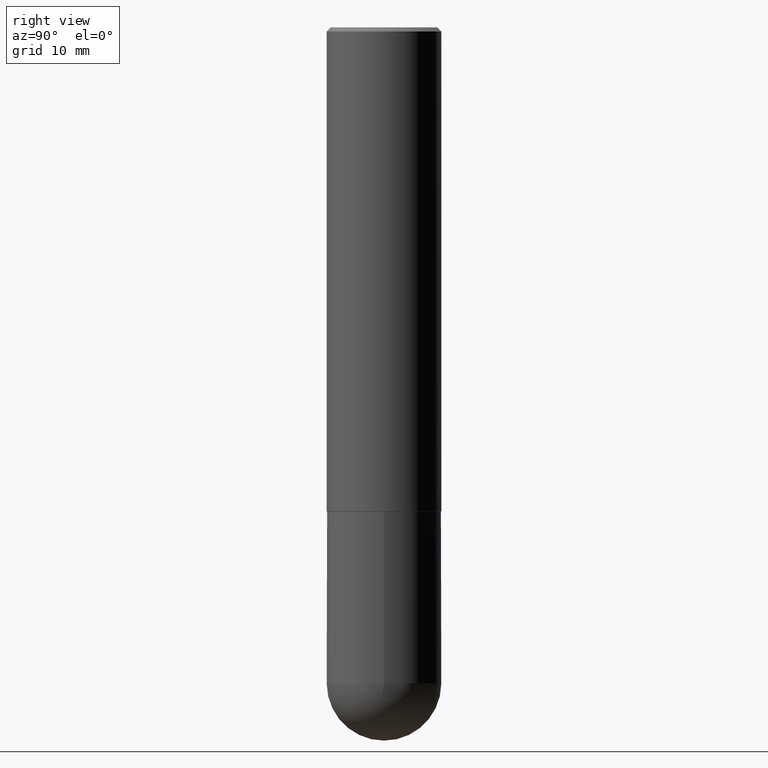
[diagram: clean part render]
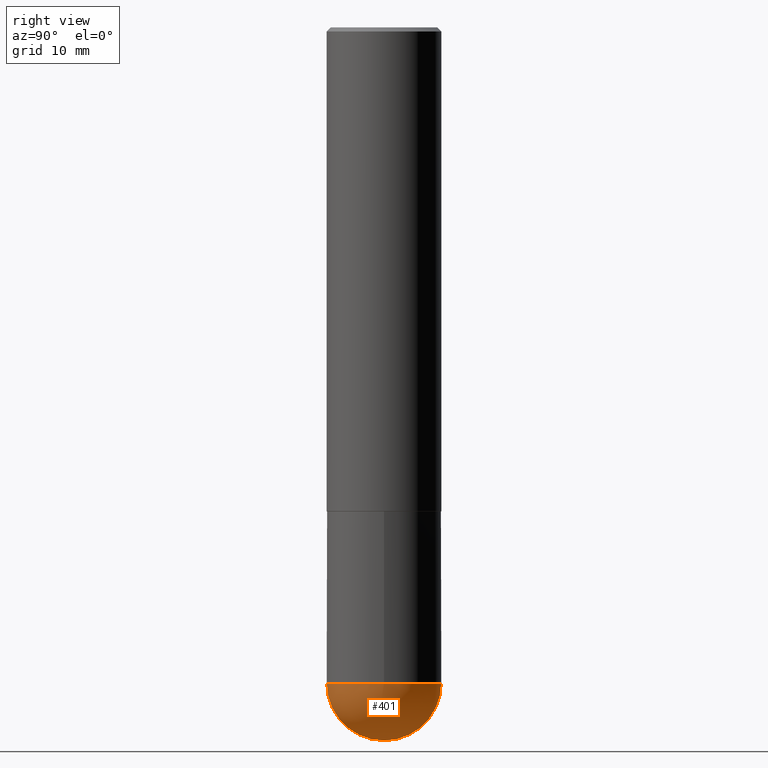
[diagram: same view with one face highlighted and labeled with its STEP entity id]
A machine part, right view. The second image highlights one B-rep face of the part: STEP entity #401.
In plain terms, the highlighted spherical surface has radius 7.1438 mm.
Its self-contained STEP definition (entity closure, byte-faithful):
#3 = AXIS2_PLACEMENT_3D ( 'NONE', #206, #332, #47 ) ;
#7 = CARTESIAN_POINT ( 'NONE',  ( 7.540232941994521053E-29, -1.171238792754142562E-14, -3.218749999999999556 ) ) ;
#8 = DIRECTION ( 'NONE',  ( -2.445468806185136597E-29, 3.491481338843145583E-15, 1.000000000000000000 ) ) ;
#25 = CARTESIAN_POINT ( 'NONE',  ( 1.963958253099340610E-15, 0.2812499999999886757, -3.218750000000000888 ) ) ;
#47 = DIRECTION ( 'NONE',  ( 6.982962677686265133E-15, 1.000000000000000000, 0.000000000000000000 ) ) ;
#76 = SPHERICAL_SURFACE ( 'NONE', #372, 0.2812500000000003331 ) ;
#81 = CARTESIAN_POINT ( 'NONE',  ( 7.871352719908407300E-29, -1.123820555940137375E-14, -3.218749999999999556 ) ) ;
#100 = DIRECTION ( 'NONE',  ( 1.000000000000000000, -6.982962677686268288E-15, 0.000000000000000000 ) ) ;
#106 = EDGE_CURVE ( 'NONE', #337, #216, #379, .T. ) ;
#113 = ORIENTED_EDGE ( 'NONE', *, *, #361, .F. ) ;
#116 = CARTESIAN_POINT ( 'NONE',  ( -1.998401444325206042E-15, -0.2812500000000116573, -3.218749999999998668 ) ) ;
#134 = CARTESIAN_POINT ( 'NONE',  ( 0.2812500000000000555, -1.172919512267618602E-14, -3.218749999999999556 ) ) ;
#158 = ORIENTED_EDGE ( 'NONE', *, *, #381, .F. ) ;
#166 = EDGE_LOOP ( 'NONE', ( #158, #305, #193, #113 ) ) ;
#189 = DIRECTION ( 'NONE',  ( -2.445468806185136597E-29, 3.491481338843145583E-15, 1.000000000000000000 ) ) ;
#193 = ORIENTED_EDGE ( 'NONE', *, *, #202, .F. ) ;
#196 = CARTESIAN_POINT ( 'NONE',  ( 8.240046819675677659E-29, -1.267714545847805119E-14, -3.500000000000000000 ) ) ;
#202 = EDGE_CURVE ( 'NONE', #347, #216, #344, .T. ) ;
#206 = CARTESIAN_POINT ( 'NONE',  ( 7.540232941994521053E-29, -1.171238792754142562E-14, -3.218749999999999556 ) ) ;
#207 = DIRECTION ( 'NONE',  ( -1.000000000000000000, 6.982962677686265922E-15, -4.883557194083112901E-29 ) ) ;
#216 = VERTEX_POINT ( 'NONE', #25 ) ;
#225 = CARTESIAN_POINT ( 'NONE',  ( 7.871352719908407300E-29, -1.123820555940137375E-14, -3.218749999999999556 ) ) ;
#231 = VERTEX_POINT ( 'NONE', #116 ) ;
#258 = CIRCLE ( 'NONE', #365, 0.2812500000000000555 ) ;
#263 = DIRECTION ( 'NONE',  ( -1.000000000000000000, 7.105427357601001070E-15, -4.926315508542082329E-29 ) ) ;
#265 = DIRECTION ( 'NONE',  ( -7.105427357601001859E-15, -1.000000000000000000, 0.000000000000000000 ) ) ;
#273 = AXIS2_PLACEMENT_3D ( 'NONE', #81, #189, #316 ) ;
#280 = AXIS2_PLACEMENT_3D ( 'NONE', #7, #263, #265 ) ;
#302 = FACE_OUTER_BOUND ( 'NONE', #166, .T. ) ;
#305 = ORIENTED_EDGE ( 'NONE', *, *, #106, .T. ) ;
#316 = DIRECTION ( 'NONE',  ( 1.000000000000000000, -6.982962677686268288E-15, 0.000000000000000000 ) ) ;
#328 = DIRECTION ( 'NONE',  ( 6.982962677686265922E-15, 1.000000000000000000, -3.885294924322502955E-15 ) ) ;
#332 = DIRECTION ( 'NONE',  ( 1.000000000000000000, -6.982962677686265922E-15, 4.883557194083112340E-29 ) ) ;
#337 = VERTEX_POINT ( 'NONE', #196 ) ;
#344 = CIRCLE ( 'NONE', #273, 0.2812500000000000555 ) ;
#347 = VERTEX_POINT ( 'NONE', #134 ) ;
#360 = CIRCLE ( 'NONE', #280, 0.2812500000000003331 ) ;
#361 = EDGE_CURVE ( 'NONE', #231, #347, #258, .T. ) ;
#365 = AXIS2_PLACEMENT_3D ( 'NONE', #225, #8, #100 ) ;
#372 = AXIS2_PLACEMENT_3D ( 'NONE', #391, #207, #328 ) ;
#379 = CIRCLE ( 'NONE', #3, 0.2812500000000003331 ) ;
#381 = EDGE_CURVE ( 'NONE', #337, #231, #360, .T. ) ;
#391 = CARTESIAN_POINT ( 'NONE',  ( 7.540232941994521053E-29, -1.171238792754142562E-14, -3.218749999999999556 ) ) ;
#401 = ADVANCED_FACE ( 'NONE', ( #302 ), #76, .T. ) ;